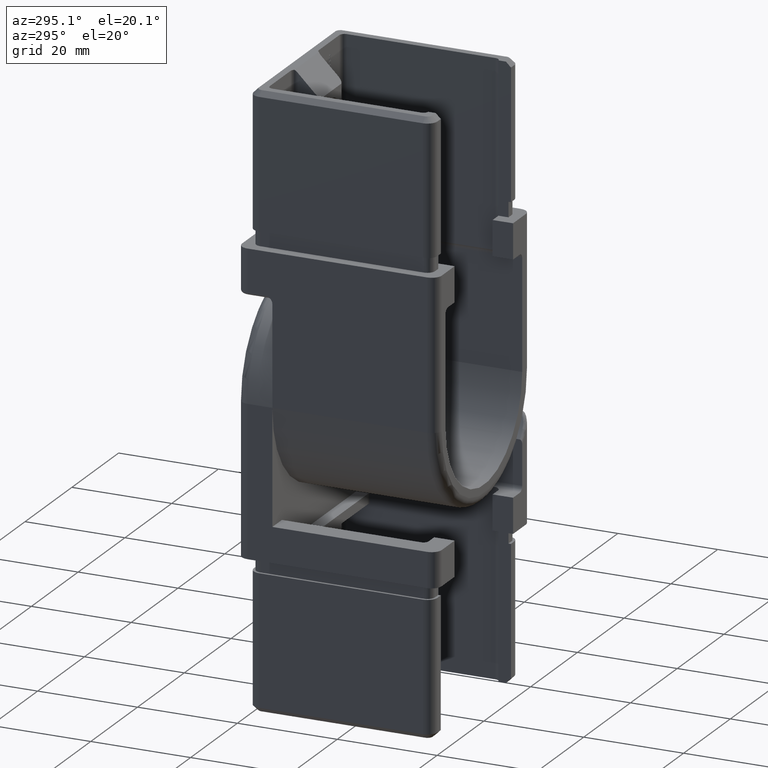
[diagram: clean part render]
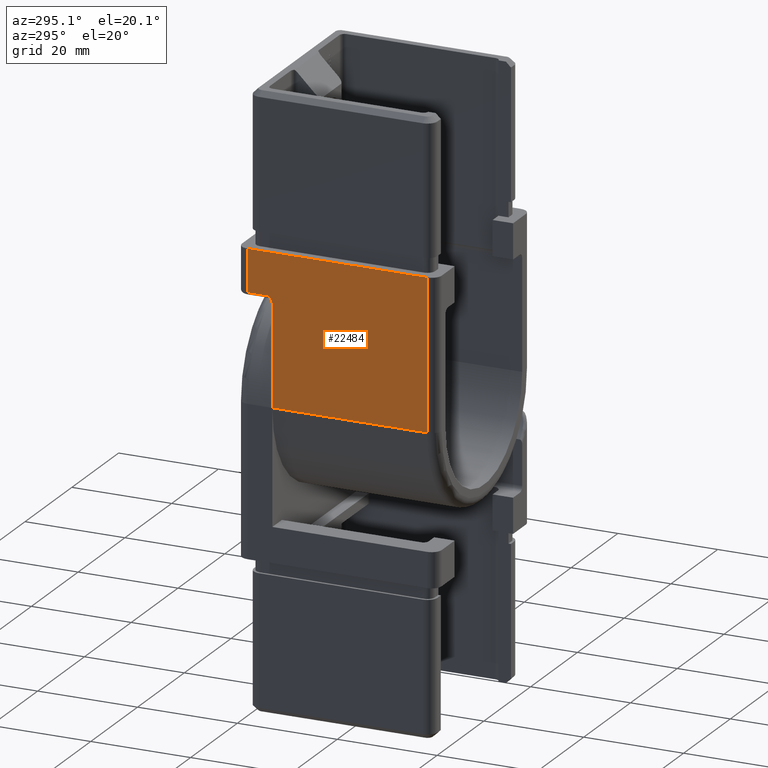
[diagram: same view with one face highlighted and labeled with its STEP entity id]
A machine part, auxiliary view. The second image highlights one B-rep face of the part: STEP entity #22484.
In plain terms, the highlighted planar face has unit normal (1, 0, 0).
Its self-contained STEP definition (entity closure, byte-faithful):
#175 = VECTOR ( 'NONE', #3861, 1000.000000000000000 ) ;
#309 = EDGE_CURVE ( 'NONE', #26734, #24083, #21189, .T. ) ;
#608 = CARTESIAN_POINT ( 'NONE',  ( -20.00000000000000000, -17.99999999999999600, 6.999999999999999100 ) ) ;
#1582 = DIRECTION ( 'NONE',  ( 9.637352644315595200E-017, -1.000000000000000000, 0.0000000000000000000 ) ) ;
#1693 = VECTOR ( 'NONE', #17973, 1000.000000000000000 ) ;
#1881 = CARTESIAN_POINT ( 'NONE',  ( -20.00000000000000400, -18.00000000000000400, -22.99999999999986100 ) ) ;
#2194 = CARTESIAN_POINT ( 'NONE',  ( -20.00000000000000400, 13.50664496000019600, -1.851747116041401200 ) ) ;
#3342 = CARTESIAN_POINT ( 'NONE',  ( -20.00000000000000400, 18.00000000000000400, 6.999999999999999100 ) ) ;
#3430 = VECTOR ( 'NONE', #23287, 1000.000000000000000 ) ;
#3491 = CARTESIAN_POINT ( 'NONE',  ( -20.00000000000000400, 13.00000000000000200, 0.0000000000000000000 ) ) ;
#3861 = DIRECTION ( 'NONE',  ( 9.637352644315595200E-017, -1.000000000000000000, 1.671814187836142500E-032 ) ) ;
#3890 = VECTOR ( 'NONE', #11935, 1000.000000000000000 ) ;
#4261 = CARTESIAN_POINT ( 'NONE',  ( -20.00000000000000400, 13.03079214385323900, -2.612870188809010200 ) ) ;
#4363 = CARTESIAN_POINT ( 'NONE',  ( -20.00000000000000400, 13.00000000000000200, -2.914213562373091400 ) ) ;
#4526 = VERTEX_POINT ( 'NONE', #21627 ) ;
#4531 = CARTESIAN_POINT ( 'NONE',  ( -20.00000000000000400, 14.00000000000000200, -1.499999999999994400 ) ) ;
#5134 = EDGE_CURVE ( 'NONE', #15029, #12621, #17407, .T. ) ;
#5178 = CARTESIAN_POINT ( 'NONE',  ( -20.00000000000000400, 18.00000000000000400, 6.999999999999999100 ) ) ;
#5345 = ORIENTED_EDGE ( 'NONE', *, *, #5134, .T. ) ;
#5371 = DIRECTION ( 'NONE',  ( -9.637352644315595200E-017, 1.000000000000000000, 0.0000000000000000000 ) ) ;
#5495 = FACE_OUTER_BOUND ( 'NONE', #6342, .T. ) ;
#5899 = ORIENTED_EDGE ( 'NONE', *, *, #26930, .F. ) ;
#6290 = VERTEX_POINT ( 'NONE', #25554 ) ;
#6342 = EDGE_LOOP ( 'NONE', ( #12947, #5345, #26438, #11827, #26726, #14052, #5899 ) ) ;
#7361 = DIRECTION ( 'NONE',  ( 9.637352644315595200E-017, -1.000000000000000000, 0.0000000000000000000 ) ) ;
#8407 = AXIS2_PLACEMENT_3D ( 'NONE', #5178, #22188, #5371 ) ;
#8934 = CARTESIAN_POINT ( 'NONE',  ( -20.00000000000000400, 14.00000000000000200, -1.499999999999994400 ) ) ;
#9449 = LINE ( 'NONE', #3342, #23446 ) ;
#9772 = LINE ( 'NONE', #24303, #3890 ) ;
#9895 = CARTESIAN_POINT ( 'NONE',  ( -20.00000000000000400, 13.00000000000000200, -2.914213562373091400 ) ) ;
#10466 = CARTESIAN_POINT ( 'NONE',  ( -20.00000000000000400, 13.00000000000000200, -2.761976110848091400 ) ) ;
#11827 = ORIENTED_EDGE ( 'NONE', *, *, #19175, .T. ) ;
#11935 = DIRECTION ( 'NONE',  ( -0.0000000000000000000, -0.0000000000000000000, -1.000000000000000000 ) ) ;
#12621 = VERTEX_POINT ( 'NONE', #8934 ) ;
#12947 = ORIENTED_EDGE ( 'NONE', *, *, #26255, .T. ) ;
#13811 = PLANE ( 'NONE',  #8407 ) ;
#14052 = ORIENTED_EDGE ( 'NONE', *, *, #25365, .F. ) ;
#14622 = CARTESIAN_POINT ( 'NONE',  ( -20.00000000000000400, 13.75359173561424700, -1.674238701081118400 ) ) ;
#15029 = VERTEX_POINT ( 'NONE', #18450 ) ;
#15475 = VERTEX_POINT ( 'NONE', #9895 ) ;
#17407 = LINE ( 'NONE', #18700, #175 ) ;
#17973 = DIRECTION ( 'NONE',  ( 2.375790853415285100E-048, -1.232595164407830900E-032, -1.000000000000000000 ) ) ;
#18450 = CARTESIAN_POINT ( 'NONE',  ( -20.00000000000000400, 18.00000000000000400, -1.499999999999994400 ) ) ;
#18700 = CARTESIAN_POINT ( 'NONE',  ( -20.00000000000000400, 13.00000000000000200, -1.499999999999994400 ) ) ;
#19175 = EDGE_CURVE ( 'NONE', #15475, #26734, #22197, .T. ) ;
#19375 = LINE ( 'NONE', #608, #3430 ) ;
#20511 = VECTOR ( 'NONE', #1582, 1000.000000000000000 ) ;
#21189 = LINE ( 'NONE', #22491, #20511 ) ;
#21342 = EDGE_CURVE ( 'NONE', #12621, #15475, #26033, .T. ) ;
#21627 = CARTESIAN_POINT ( 'NONE',  ( -20.00000000000000400, 18.00000000000000400, 6.999999999999999100 ) ) ;
#22188 = DIRECTION ( 'NONE',  ( 1.000000000000000000, 9.637352644315595200E-017, -0.0000000000000000000 ) ) ;
#22197 = LINE ( 'NONE', #3491, #1693 ) ;
#22484 = ADVANCED_FACE ( 'NONE', ( #5495 ), #13811, .F. ) ;
#22491 = CARTESIAN_POINT ( 'NONE',  ( -20.00000000000000000, -1.927470528863118900E-015, -23.00000000000000000 ) ) ;
#22834 = CARTESIAN_POINT ( 'NONE',  ( -20.00000000000000400, 13.14197769919323900, -2.331934973778361900 ) ) ;
#23201 = CARTESIAN_POINT ( 'NONE',  ( -20.00000000000000400, 13.22216522749400400, -2.201681151803526400 ) ) ;
#23287 = DIRECTION ( 'NONE',  ( -0.0000000000000000000, -0.0000000000000000000, -1.000000000000000000 ) ) ;
#23446 = VECTOR ( 'NONE', #7361, 1000.000000000000000 ) ;
#24083 = VERTEX_POINT ( 'NONE', #1881 ) ;
#24303 = CARTESIAN_POINT ( 'NONE',  ( -20.00000000000000400, 18.00000000000000400, 6.999999999999999100 ) ) ;
#25304 = CARTESIAN_POINT ( 'NONE',  ( -20.00000000000000400, 13.00000000000000200, -23.00000000000000000 ) ) ;
#25365 = EDGE_CURVE ( 'NONE', #6290, #24083, #19375, .T. ) ;
#25554 = CARTESIAN_POINT ( 'NONE',  ( -20.00000000000000000, -17.99999999999999600, 6.999999999999999100 ) ) ;
#26033 = B_SPLINE_CURVE_WITH_KNOTS ( 'NONE', 3,
 ( #4531, #14622, #2194, #23201, #22834, #4261, #10466, #4363 ),
 .UNSPECIFIED., .F., .F.,
 ( 4, 2, 2, 4 ),
 ( -6.324555319543069900E-006, 0.0008990402437577877600, 0.001351722643296452900, 0.001804405042835118300 ),
 .UNSPECIFIED. ) ;
#26255 = EDGE_CURVE ( 'NONE', #4526, #15029, #9772, .T. ) ;
#26438 = ORIENTED_EDGE ( 'NONE', *, *, #21342, .T. ) ;
#26726 = ORIENTED_EDGE ( 'NONE', *, *, #309, .T. ) ;
#26734 = VERTEX_POINT ( 'NONE', #25304 ) ;
#26930 = EDGE_CURVE ( 'NONE', #4526, #6290, #9449, .T. ) ;